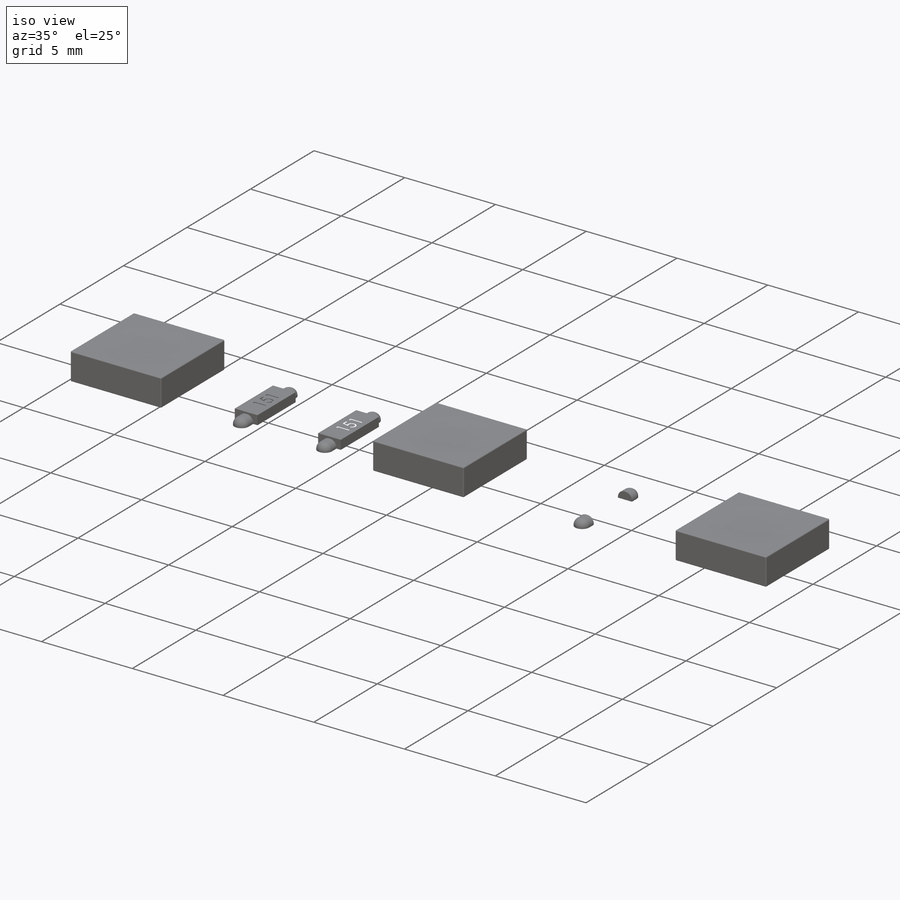
[diagram: iso view]
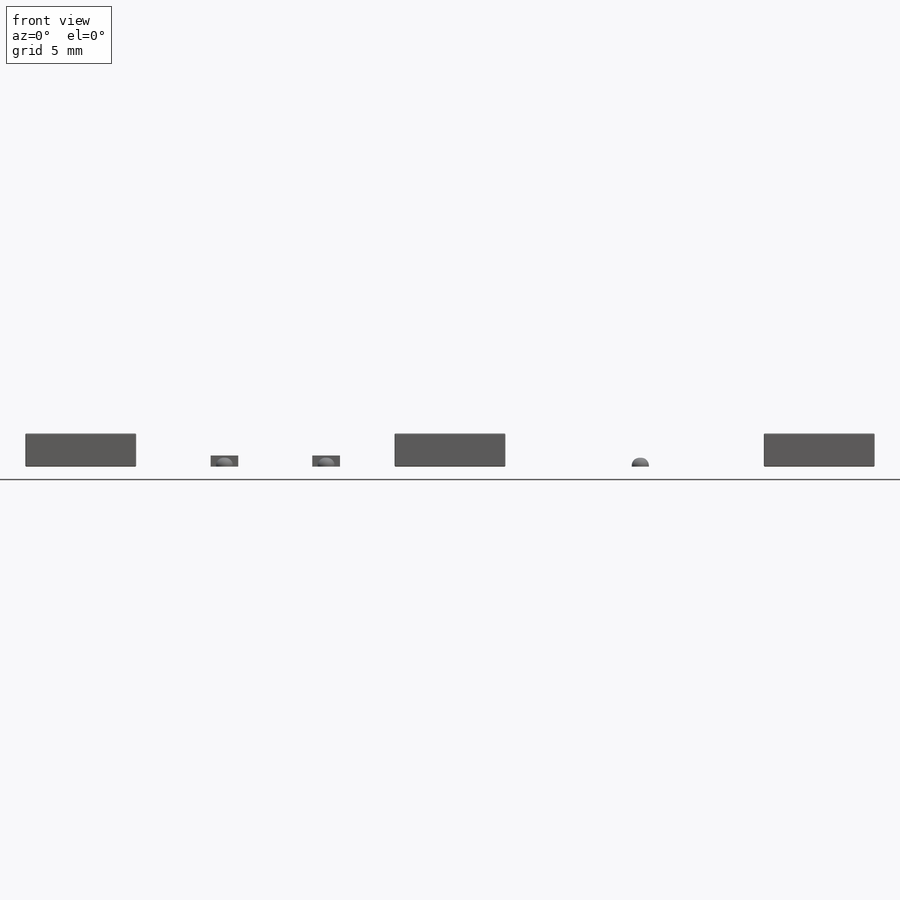
[diagram: front view]
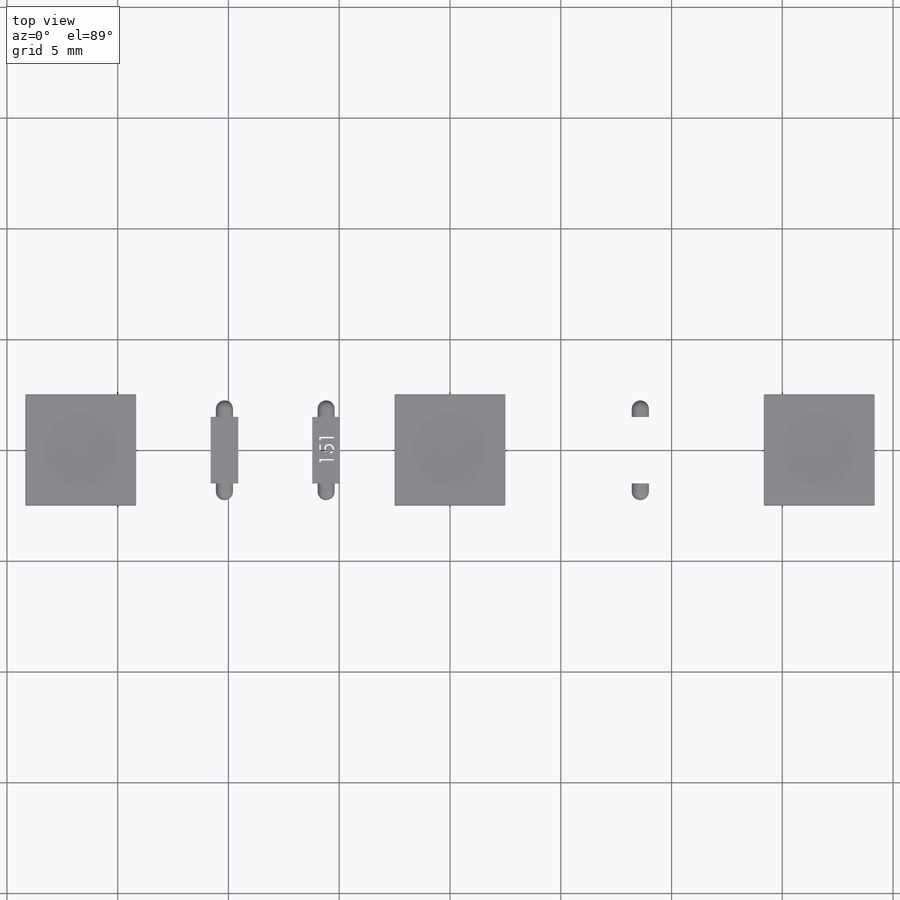
[diagram: top view]
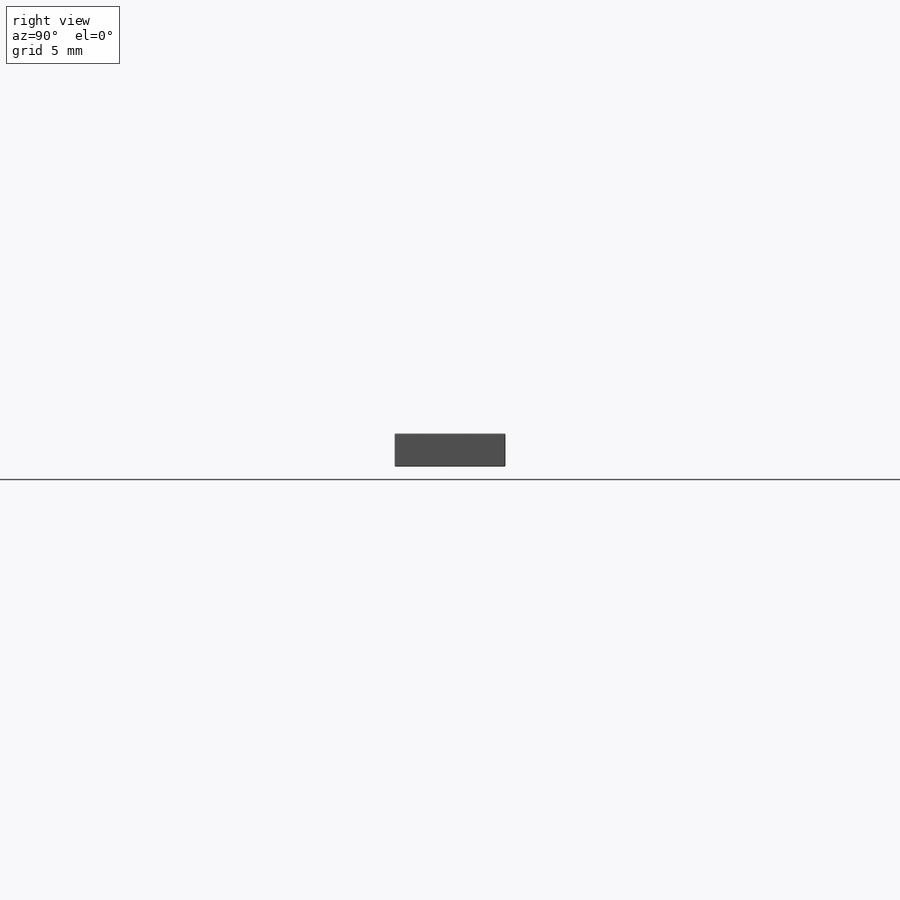
[diagram: right view]
SOLIDWORKS PART (.sldprt)
format: sldprt  version: not decoded by parser v0  size: 2,694,144 bytes
history: native  units: mm
features: fillet x14, sketch x13, pattern_linear x9, extrude x6, cut_extrude x5, material x1 (+13 scaffold rows collapsed)
feature tree (61):
  scaffold x13  (default folders/planes/origin — collapsed)
  material  "Material <not specified>"
  sketch  "Sketch1"  dims[D1=11.0mm D2=50.0mm]
  extrude  "Boss-Extrude1"  Depth=0.4mm
  sketch  "Sketch2"  dims[D1=3.0mm D2=2.5mm D3=2.5mm]
  cut_extrude  "Cut-Extrude1"  Depth=0.05mm
  sketch  "Sketch3"  dims[D1=5.0mm D2=5.0mm D3=~16.666667mm]
  extrude  "Boss-Extrude2"  Depth=1.5mm
  sketch  "Sketch4"  dims[D1=4.0mm D2=16.67mm]
  cut_extrude  "Cut-Extrude2"  Depth=0.05mm
  sketch  "Sketch5"  dims[c1.D1=6.0mm c1.D2=9.0mm c1.D3=2.75mm c2.D1=0.05mm c2.D5=0.25mm c2.D6=10.0mm c2.D7=5.0mm]
  pattern_linear  "LPattern1"  Count1=3 Count2=1 Spacing1=16.67mm Spacing2=10mm
  sketch  "Sketch6"  dims[D1=7.0mm D2=2.5mm D3=1.0mm D4=1.0mm]
  extrude  "Cut-Extrude-Thin2"  Depth=0.05mm
  sketch  "Sketch7"  dims[D1=5.085mm D2=14.1275mm]
  pattern_linear  "LPattern2"  Count1=2 Count2=1 Spacing1=14.38mm Spacing2=10mm
  pattern_linear  "LPattern3"  Count1=2 Count2=1 Spacing1=18.77mm Spacing2=10mm
  sketch  "Sketch8"  dims[D1=3.0mm D2=1.25mm]
  extrude  "Boss-Extrude3"  Depth=0.5mm
  sketch  "Sketch9"  dims[D1=4.5mm]
  extrude  "Boss-Extrude4"  Depth=0.4mm
  fillet  "Fillet4"  Radius=0.35mm
  fillet  "Fillet5"  Radius=0.35mm
  pattern_linear  "LPattern4"  Count1=2 Count2=1 Spacing1=18.77mm Spacing2=10mm
  pattern_linear  "LPattern5"  Count1=2 Count2=1 Spacing1=4.59mm Spacing2=10mm
  fillet  "Fillet6"  Radius=0.05mm
  fillet  "Fillet7"  Radius=0.05mm
  fillet  "Fillet8"  Radius=0.05mm
  sketch  "Sketch10"
  cut_extrude  "Cut-Extrude3"  Depth=0.05mm
  pattern_linear  "LPattern6"  Count1=2 Count2=1 Spacing1=42.15mm Spacing2=10mm
  sketch  "Sketch11"
  cut_extrude  "Cut-Extrude4"  Depth=0.05mm
  pattern_linear  "LPattern7"  Count1=2 Count2=1 Spacing1=4.59mm Spacing2=10mm
  pattern_linear  "LPattern8"  Count1=2 Count2=1 Spacing1=18.77mm Spacing2=10mm
  sketch  "Sketch12"
  extrude  "Boss-Extrude5"  Depth=1.25mm
  fillet  "Fillet9"  Radius=0.4mm
  fillet  "Fillet10"  Radius=0.4mm
  fillet  "Fillet11"  Radius=0.4mm
  fillet  "Fillet12"  Radius=0.4mm
  fillet  "Fillet13"  Radius=0.4mm
  fillet  "Fillet14"  Radius=0.4mm
  pattern_linear  "LPattern9"  Count1=3 Count2=1 Spacing1=16.67mm Spacing2=10mm
  fillet  "Fillet18"  Radius=35mm
  fillet  "Fillet19"  Radius=35mm
  fillet  "Fillet20"  Radius=35mm
  sketch  "Sketch14"
  cut_extrude  "Cut-Extrude5"  Depth=0.05mm
decode coverage: 43 of 47 modeling features carry decoded parameters
note: ~ marks probable driven/reference dimensions
note: suppression state not decoded; provenance and decode notes live in map.json
